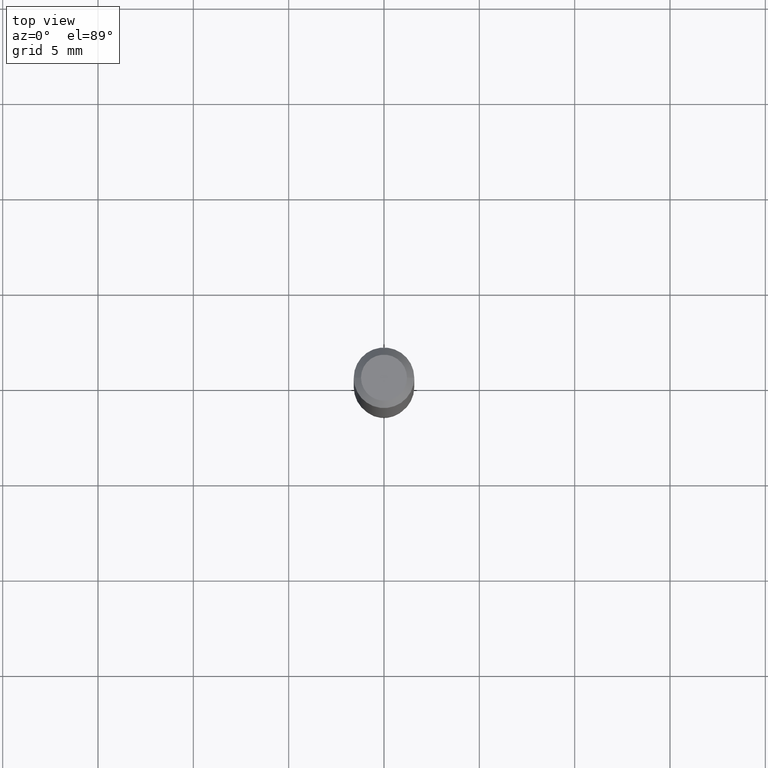
[diagram: clean part render]
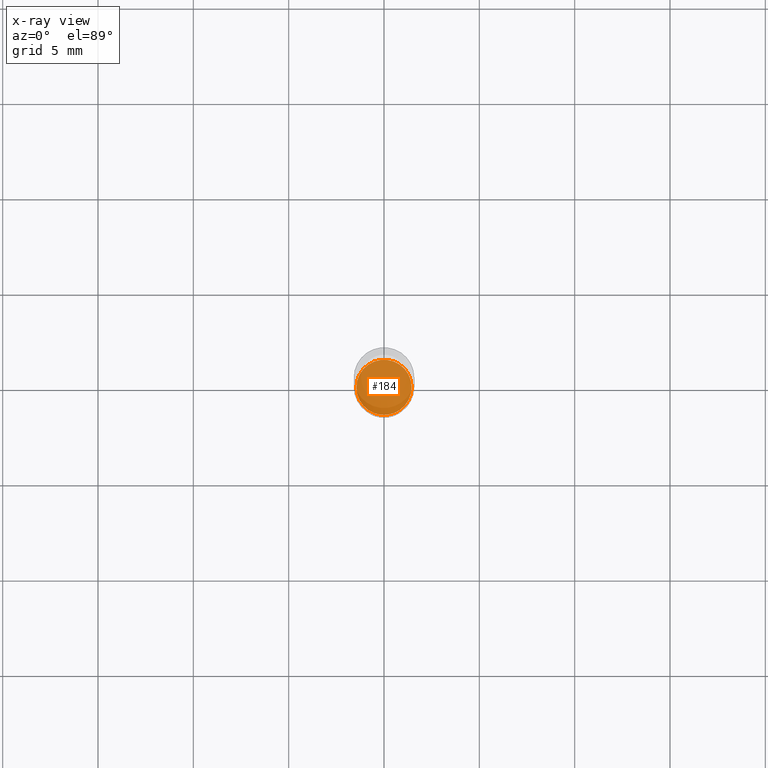
[diagram: x-ray — body ghosted, one internal face saturated and labeled with its STEP entity id]
A machine part, top view, then the same camera in x-ray: the body is ghosted and one INTERNAL B-rep face — a face not visible from any outside direction — is saturated and labeled: STEP entity #184.
In plain terms, the highlighted planar face has unit normal (-0, 0, 1).
Its self-contained STEP definition (entity closure, byte-faithful):
#13 = EDGE_CURVE ( 'NONE', #47, #305, #271, .T. ) ;
#19 = AXIS2_PLACEMENT_3D ( 'NONE', #475, #32, #508 ) ;
#31 = CIRCLE ( 'NONE', #258, 0.05699999999999998818 ) ;
#32 = DIRECTION ( 'NONE',  ( -2.438088387897960049E-29, 3.491481338843145188E-15, 1.000000000000000000 ) ) ;
#47 = VERTEX_POINT ( 'NONE', #401 ) ;
#58 = ORIENTED_EDGE ( 'NONE', *, *, #154, .F. ) ;
#73 = CARTESIAN_POINT ( 'NONE',  ( 0.05699999999999998818, -4.430689818991950396E-15, -1.155000000000000027 ) ) ;
#101 = DIRECTION ( 'NONE',  ( 1.000000000000000000, -6.982962677686266711E-15, 0.000000000000000000 ) ) ;
#129 = DIRECTION ( 'NONE',  ( 1.000000000000000000, -6.982962677686266711E-15, 0.000000000000000000 ) ) ;
#154 = EDGE_CURVE ( 'NONE', #305, #47, #31, .T. ) ;
#162 = DIRECTION ( 'NONE',  ( -2.445468806185136597E-29, 3.491481338843145583E-15, 1.000000000000000000 ) ) ;
#184 = ADVANCED_FACE ( 'NONE', ( #199 ), #274, .F. ) ;
#199 = FACE_OUTER_BOUND ( 'NONE', #422, .T. ) ;
#258 = AXIS2_PLACEMENT_3D ( 'NONE', #396, #457, #101 ) ;
#271 = CIRCLE ( 'NONE', #429, 0.05699999999999998818 ) ;
#274 = PLANE ( 'NONE',  #19 ) ;
#305 = VERTEX_POINT ( 'NONE', #73 ) ;
#360 = CARTESIAN_POINT ( 'NONE',  ( 2.824516471143833307E-29, -4.032660946363833383E-15, -1.155000000000000027 ) ) ;
#396 = CARTESIAN_POINT ( 'NONE',  ( 2.824516471143833307E-29, -4.032660946363833383E-15, -1.155000000000000027 ) ) ;
#401 = CARTESIAN_POINT ( 'NONE',  ( -0.05699999999999998818, -3.625002359806465505E-15, -1.155000000000000027 ) ) ;
#422 = EDGE_LOOP ( 'NONE', ( #58, #449 ) ) ;
#429 = AXIS2_PLACEMENT_3D ( 'NONE', #360, #162, #129 ) ;
#449 = ORIENTED_EDGE ( 'NONE', *, *, #13, .F. ) ;
#457 = DIRECTION ( 'NONE',  ( -2.445468806185136597E-29, 3.491481338843145583E-15, 1.000000000000000000 ) ) ;
#475 = CARTESIAN_POINT ( 'NONE',  ( 2.824516471143833307E-29, -4.032660946363833383E-15, -1.155000000000000027 ) ) ;
#508 = DIRECTION ( 'NONE',  ( 1.000000000000000000, -6.982962677686265922E-15, 4.876176775795935793E-29 ) ) ;